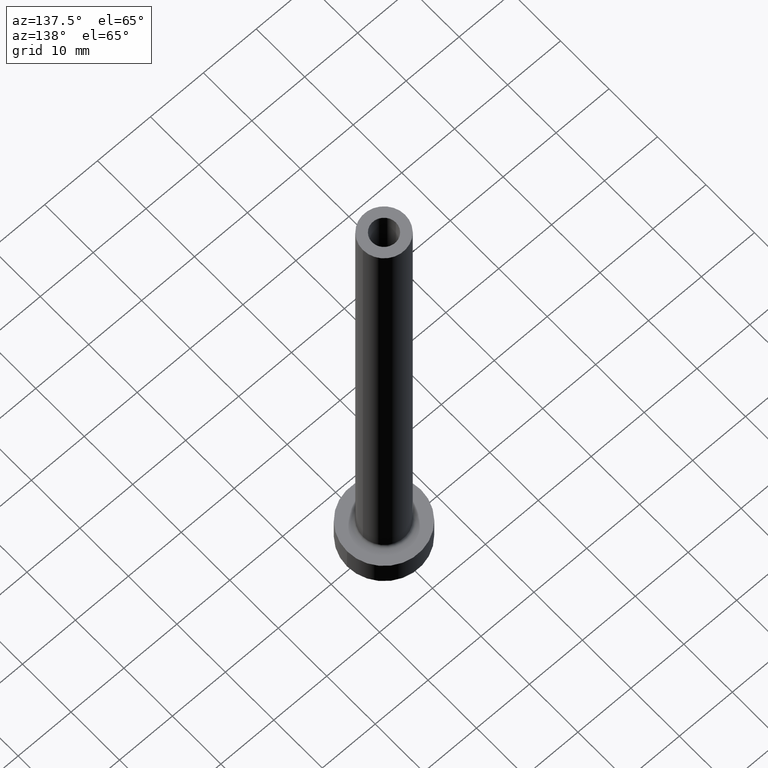
[diagram: clean part render]
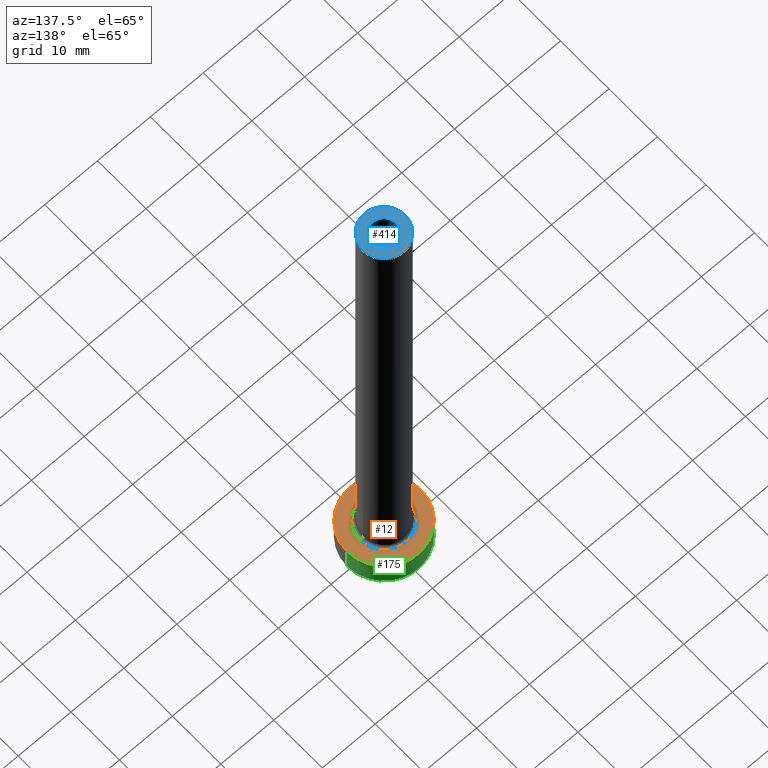
[diagram: same view with three faces highlighted in distinct colors, each labeled with its STEP entity id]
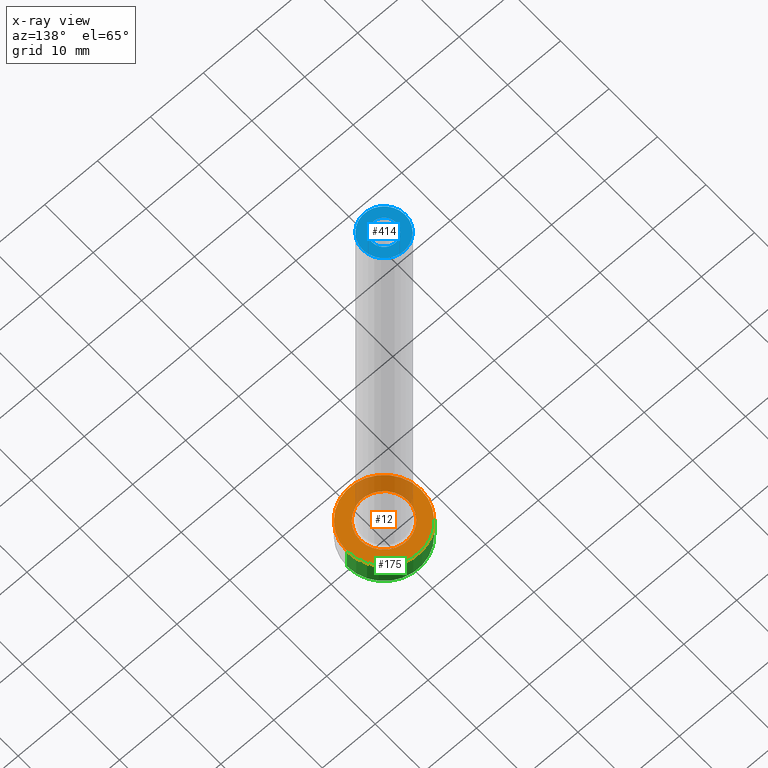
[diagram: x-ray of the same camera — body ghosted, the three highlighted faces saturated]
A machine part, auxiliary view with three faces highlighted in distinct colors.
The next image is the same camera in x-ray (body ghosted, the three faces saturated) — at least one of them is partly hidden behind the body in this view.
Their STEP definitions:

[orange] entity #12 — the highlighted planar face has unit normal (0, 0, 1).
#3 = FACE_BOUND ( 'NONE', #61, .T. ) ;
#12 = ADVANCED_FACE ( 'NONE', ( #3, #170 ), #451, .T. ) ;
#16 = ORIENTED_EDGE ( 'NONE', *, *, #230, .T. ) ;
#17 = CARTESIAN_POINT ( 'NONE',  ( 4.500000000000000888, 0.000000000000000000, 5.000000000000002665 ) ) ;
#18 = CARTESIAN_POINT ( 'NONE',  ( 0.000000000000000000, 0.000000000000000000, 5.000000000000000000 ) ) ;
#32 = CARTESIAN_POINT ( 'NONE',  ( 0.000000000000000000, 0.000000000000000000, 5.000000000000000000 ) ) ;
#38 = CIRCLE ( 'NONE', #278, 7.000000000000000000 ) ;
#54 = VERTEX_POINT ( 'NONE', #17 ) ;
#61 = EDGE_LOOP ( 'NONE', ( #304, #246 ) ) ;
#62 = CIRCLE ( 'NONE', #86, 4.500000000000000888 ) ;
#64 = DIRECTION ( 'NONE',  ( 0.000000000000000000, 0.000000000000000000, 1.000000000000000000 ) ) ;
#73 = DIRECTION ( 'NONE',  ( -0.000000000000000000, -0.000000000000000000, -1.000000000000000000 ) ) ;
#86 = AXIS2_PLACEMENT_3D ( 'NONE', #32, #73, #387 ) ;
#102 = CARTESIAN_POINT ( 'NONE',  ( -7.000000000000000000, 0.000000000000000000, 5.000000000000000000 ) ) ;
#126 = CARTESIAN_POINT ( 'NONE',  ( 0.000000000000000000, 0.000000000000000000, 5.000000000000000000 ) ) ;
#140 = CARTESIAN_POINT ( 'NONE',  ( 0.000000000000000000, 0.000000000000000000, 5.000000000000000000 ) ) ;
#143 = EDGE_CURVE ( 'NONE', #167, #54, #207, .T. ) ;
#158 = DIRECTION ( 'NONE',  ( 1.000000000000000000, 0.000000000000000000, 0.000000000000000000 ) ) ;
#164 = DIRECTION ( 'NONE',  ( 1.000000000000000000, 0.000000000000000000, 0.000000000000000000 ) ) ;
#167 = VERTEX_POINT ( 'NONE', #291 ) ;
#170 = FACE_OUTER_BOUND ( 'NONE', #277, .T. ) ;
#177 = CARTESIAN_POINT ( 'NONE',  ( 0.000000000000000000, 0.000000000000000000, 5.000000000000000000 ) ) ;
#199 = EDGE_CURVE ( 'NONE', #436, #237, #294, .T. ) ;
#207 = CIRCLE ( 'NONE', #460, 4.500000000000000888 ) ;
#216 = DIRECTION ( 'NONE',  ( 1.000000000000000000, 0.000000000000000000, -0.000000000000000000 ) ) ;
#230 = EDGE_CURVE ( 'NONE', #237, #436, #38, .T. ) ;
#237 = VERTEX_POINT ( 'NONE', #102 ) ;
#246 = ORIENTED_EDGE ( 'NONE', *, *, #143, .T. ) ;
#252 = DIRECTION ( 'NONE',  ( 0.000000000000000000, 0.000000000000000000, 1.000000000000000000 ) ) ;
#276 = ORIENTED_EDGE ( 'NONE', *, *, #199, .T. ) ;
#277 = EDGE_LOOP ( 'NONE', ( #16, #276 ) ) ;
#278 = AXIS2_PLACEMENT_3D ( 'NONE', #126, #64, #164 ) ;
#285 = DIRECTION ( 'NONE',  ( 1.000000000000000000, 0.000000000000000000, 0.000000000000000000 ) ) ;
#291 = CARTESIAN_POINT ( 'NONE',  ( -4.500000000000000888, 5.510910596163088569E-16, 5.000000000000002665 ) ) ;
#294 = CIRCLE ( 'NONE', #450, 7.000000000000000000 ) ;
#304 = ORIENTED_EDGE ( 'NONE', *, *, #344, .T. ) ;
#320 = DIRECTION ( 'NONE',  ( -0.000000000000000000, -0.000000000000000000, -1.000000000000000000 ) ) ;
#324 = CARTESIAN_POINT ( 'NONE',  ( 7.000000000000000000, 8.572527594031473190E-16, 5.000000000000000000 ) ) ;
#344 = EDGE_CURVE ( 'NONE', #54, #167, #62, .T. ) ;
#387 = DIRECTION ( 'NONE',  ( 1.000000000000000000, 0.000000000000000000, 0.000000000000000000 ) ) ;
#409 = AXIS2_PLACEMENT_3D ( 'NONE', #140, #413, #216 ) ;
#413 = DIRECTION ( 'NONE',  ( 0.000000000000000000, 0.000000000000000000, 1.000000000000000000 ) ) ;
#436 = VERTEX_POINT ( 'NONE', #324 ) ;
#450 = AXIS2_PLACEMENT_3D ( 'NONE', #18, #252, #158 ) ;
#451 = PLANE ( 'NONE',  #409 ) ;
#460 = AXIS2_PLACEMENT_3D ( 'NONE', #177, #320, #285 ) ;

[blue] entity #414 — the highlighted planar face has unit normal (0, 0, 1).
#2 = DIRECTION ( 'NONE',  ( 0.000000000000000000, 0.000000000000000000, 1.000000000000000000 ) ) ;
#24 = EDGE_CURVE ( 'NONE', #118, #77, #58, .T. ) ;
#39 = DIRECTION ( 'NONE',  ( 0.000000000000000000, 0.000000000000000000, 1.000000000000000000 ) ) ;
#53 = DIRECTION ( 'NONE',  ( 0.000000000000000000, 0.000000000000000000, 1.000000000000000000 ) ) ;
#58 = CIRCLE ( 'NONE', #130, 4.000000000000000000 ) ;
#68 = ORIENTED_EDGE ( 'NONE', *, *, #134, .T. ) ;
#77 = VERTEX_POINT ( 'NONE', #284 ) ;
#83 = CARTESIAN_POINT ( 'NONE',  ( 0.000000000000000000, 0.000000000000000000, 100.0000000000000000 ) ) ;
#101 = EDGE_CURVE ( 'NONE', #444, #282, #248, .T. ) ;
#108 = AXIS2_PLACEMENT_3D ( 'NONE', #156, #2, #429 ) ;
#112 = EDGE_CURVE ( 'NONE', #282, #444, #296, .T. ) ;
#118 = VERTEX_POINT ( 'NONE', #205 ) ;
#122 = DIRECTION ( 'NONE',  ( 1.000000000000000000, 0.000000000000000000, 0.000000000000000000 ) ) ;
#128 = EDGE_LOOP ( 'NONE', ( #330, #447 ) ) ;
#130 = AXIS2_PLACEMENT_3D ( 'NONE', #274, #309, #417 ) ;
#134 = EDGE_CURVE ( 'NONE', #77, #118, #416, .T. ) ;
#146 = PLANE ( 'NONE',  #432 ) ;
#152 = CARTESIAN_POINT ( 'NONE',  ( 2.250000000000000000, 2.755455298081543792E-16, 100.0000000000000000 ) ) ;
#156 = CARTESIAN_POINT ( 'NONE',  ( 0.000000000000000000, 0.000000000000000000, 100.0000000000000000 ) ) ;
#171 = EDGE_LOOP ( 'NONE', ( #356, #68 ) ) ;
#205 = CARTESIAN_POINT ( 'NONE',  ( -4.000000000000000000, 0.000000000000000000, 100.0000000000000000 ) ) ;
#219 = CARTESIAN_POINT ( 'NONE',  ( -2.250000000000000000, 0.000000000000000000, 100.0000000000000000 ) ) ;
#232 = CARTESIAN_POINT ( 'NONE',  ( 0.000000000000000000, 0.000000000000000000, 100.0000000000000000 ) ) ;
#248 = CIRCLE ( 'NONE', #442, 2.250000000000000000 ) ;
#274 = CARTESIAN_POINT ( 'NONE',  ( 0.000000000000000000, 0.000000000000000000, 100.0000000000000000 ) ) ;
#282 = VERTEX_POINT ( 'NONE', #219 ) ;
#284 = CARTESIAN_POINT ( 'NONE',  ( 4.000000000000000000, 4.898587196589412829E-16, 100.0000000000000000 ) ) ;
#296 = CIRCLE ( 'NONE', #108, 2.250000000000000000 ) ;
#303 = DIRECTION ( 'NONE',  ( 1.000000000000000000, 0.000000000000000000, 0.000000000000000000 ) ) ;
#309 = DIRECTION ( 'NONE',  ( 0.000000000000000000, 0.000000000000000000, 1.000000000000000000 ) ) ;
#311 = FACE_BOUND ( 'NONE', #128, .T. ) ;
#323 = DIRECTION ( 'NONE',  ( 1.000000000000000000, 0.000000000000000000, -0.000000000000000000 ) ) ;
#330 = ORIENTED_EDGE ( 'NONE', *, *, #112, .F. ) ;
#333 = AXIS2_PLACEMENT_3D ( 'NONE', #461, #424, #303 ) ;
#356 = ORIENTED_EDGE ( 'NONE', *, *, #24, .T. ) ;
#414 = ADVANCED_FACE ( 'NONE', ( #311, #456 ), #146, .T. ) ;
#416 = CIRCLE ( 'NONE', #333, 4.000000000000000000 ) ;
#417 = DIRECTION ( 'NONE',  ( 1.000000000000000000, 0.000000000000000000, 0.000000000000000000 ) ) ;
#424 = DIRECTION ( 'NONE',  ( 0.000000000000000000, 0.000000000000000000, 1.000000000000000000 ) ) ;
#429 = DIRECTION ( 'NONE',  ( 1.000000000000000000, 0.000000000000000000, 0.000000000000000000 ) ) ;
#432 = AXIS2_PLACEMENT_3D ( 'NONE', #232, #53, #323 ) ;
#442 = AXIS2_PLACEMENT_3D ( 'NONE', #83, #39, #122 ) ;
#444 = VERTEX_POINT ( 'NONE', #152 ) ;
#447 = ORIENTED_EDGE ( 'NONE', *, *, #101, .F. ) ;
#456 = FACE_OUTER_BOUND ( 'NONE', #171, .T. ) ;
#461 = CARTESIAN_POINT ( 'NONE',  ( 0.000000000000000000, 0.000000000000000000, 100.0000000000000000 ) ) ;

[green] entity #175 — the highlighted cylindrical surface (partial cylindrical patch) has radius 7 mm, axis along (-0, -0, -1).
#5 = DIRECTION ( 'NONE',  ( -0.000000000000000000, -0.000000000000000000, -1.000000000000000000 ) ) ;
#18 = CARTESIAN_POINT ( 'NONE',  ( 0.000000000000000000, 0.000000000000000000, 5.000000000000000000 ) ) ;
#27 = VECTOR ( 'NONE', #5, 1000.000000000000000 ) ;
#55 = DIRECTION ( 'NONE',  ( -0.000000000000000000, -0.000000000000000000, -1.000000000000000000 ) ) ;
#66 = EDGE_CURVE ( 'NONE', #237, #82, #185, .T. ) ;
#69 = CIRCLE ( 'NONE', #315, 7.000000000000000000 ) ;
#82 = VERTEX_POINT ( 'NONE', #425 ) ;
#88 = EDGE_CURVE ( 'NONE', #436, #223, #396, .T. ) ;
#102 = CARTESIAN_POINT ( 'NONE',  ( -7.000000000000000000, 0.000000000000000000, 5.000000000000000000 ) ) ;
#135 = AXIS2_PLACEMENT_3D ( 'NONE', #430, #55, #275 ) ;
#158 = DIRECTION ( 'NONE',  ( 1.000000000000000000, 0.000000000000000000, 0.000000000000000000 ) ) ;
#175 = ADVANCED_FACE ( 'NONE', ( #418 ), #455, .T. ) ;
#176 = EDGE_CURVE ( 'NONE', #223, #82, #69, .T. ) ;
#182 = DIRECTION ( 'NONE',  ( -0.000000000000000000, -0.000000000000000000, -1.000000000000000000 ) ) ;
#185 = LINE ( 'NONE', #395, #27 ) ;
#192 = VECTOR ( 'NONE', #182, 1000.000000000000000 ) ;
#199 = EDGE_CURVE ( 'NONE', #436, #237, #294, .T. ) ;
#200 = ORIENTED_EDGE ( 'NONE', *, *, #176, .T. ) ;
#201 = EDGE_LOOP ( 'NONE', ( #204, #389, #200, #247 ) ) ;
#204 = ORIENTED_EDGE ( 'NONE', *, *, #199, .F. ) ;
#223 = VERTEX_POINT ( 'NONE', #433 ) ;
#237 = VERTEX_POINT ( 'NONE', #102 ) ;
#247 = ORIENTED_EDGE ( 'NONE', *, *, #66, .F. ) ;
#252 = DIRECTION ( 'NONE',  ( 0.000000000000000000, 0.000000000000000000, 1.000000000000000000 ) ) ;
#275 = DIRECTION ( 'NONE',  ( -1.000000000000000000, 0.000000000000000000, 0.000000000000000000 ) ) ;
#294 = CIRCLE ( 'NONE', #450, 7.000000000000000000 ) ;
#315 = AXIS2_PLACEMENT_3D ( 'NONE', #325, #360, #400 ) ;
#324 = CARTESIAN_POINT ( 'NONE',  ( 7.000000000000000000, 8.572527594031473190E-16, 5.000000000000000000 ) ) ;
#325 = CARTESIAN_POINT ( 'NONE',  ( 0.000000000000000000, 0.000000000000000000, 0.000000000000000000 ) ) ;
#360 = DIRECTION ( 'NONE',  ( 0.000000000000000000, 0.000000000000000000, 1.000000000000000000 ) ) ;
#386 = CARTESIAN_POINT ( 'NONE',  ( 7.000000000000000000, 8.572527594031473190E-16, 5.000000000000000000 ) ) ;
#389 = ORIENTED_EDGE ( 'NONE', *, *, #88, .T. ) ;
#395 = CARTESIAN_POINT ( 'NONE',  ( -7.000000000000000000, 0.000000000000000000, 5.000000000000000000 ) ) ;
#396 = LINE ( 'NONE', #386, #192 ) ;
#400 = DIRECTION ( 'NONE',  ( 1.000000000000000000, 0.000000000000000000, 0.000000000000000000 ) ) ;
#418 = FACE_OUTER_BOUND ( 'NONE', #201, .T. ) ;
#425 = CARTESIAN_POINT ( 'NONE',  ( -7.000000000000000000, 0.000000000000000000, 0.000000000000000000 ) ) ;
#430 = CARTESIAN_POINT ( 'NONE',  ( 0.000000000000000000, 0.000000000000000000, 5.000000000000000000 ) ) ;
#433 = CARTESIAN_POINT ( 'NONE',  ( 7.000000000000000000, 8.572527594031473190E-16, 0.000000000000000000 ) ) ;
#436 = VERTEX_POINT ( 'NONE', #324 ) ;
#450 = AXIS2_PLACEMENT_3D ( 'NONE', #18, #252, #158 ) ;
#455 = CYLINDRICAL_SURFACE ( 'NONE', #135, 7.000000000000000000 ) ;